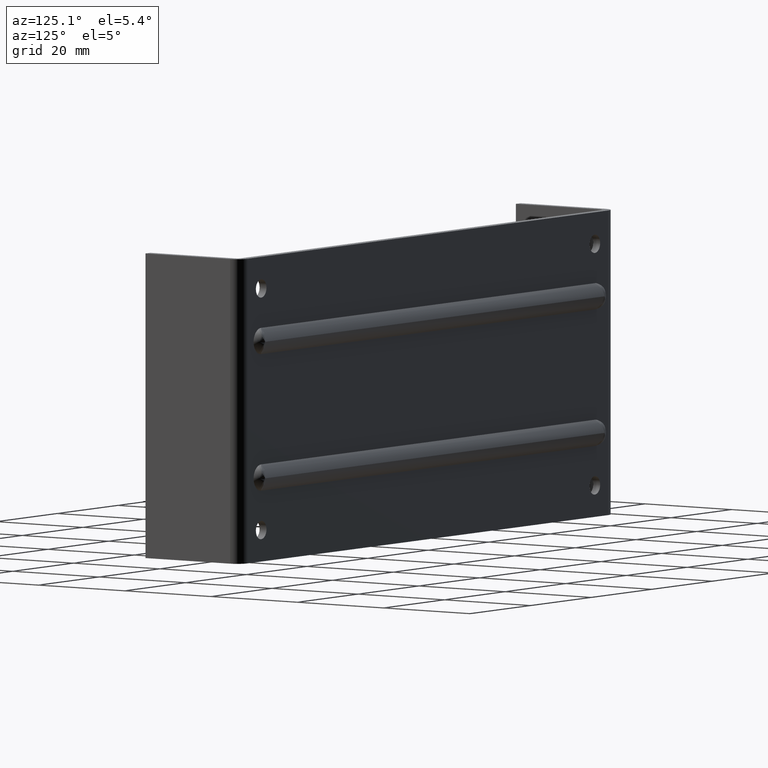
[diagram: clean part render]
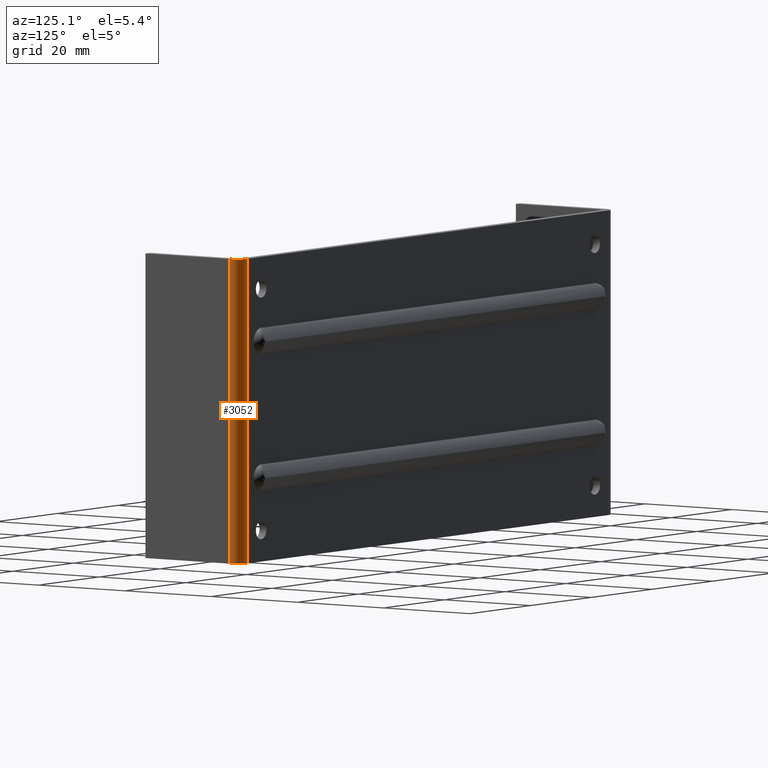
[diagram: same view with one face highlighted and labeled with its STEP entity id]
A machine part, auxiliary view. The second image highlights one B-rep face of the part: STEP entity #3052.
In plain terms, the highlighted face is a freeform B-spline surface patch.
Its self-contained STEP definition (entity closure, byte-faithful):
#2870=CARTESIAN_POINT('',(61.850000000000001,-2.400000000000000,29.0));
#2871=VERTEX_POINT('',#2870);
#2877=CARTESIAN_POINT('',(59.450000000000003,-7.105427E-015,29.0));
#2878=VERTEX_POINT('',#2877);
#2879=CARTESIAN_POINT('',(61.850000000000001,-2.400000000000000,29.0));
#2880=CARTESIAN_POINT('',(61.849999999999994,0.0,29.000000000000007));
#2881=CARTESIAN_POINT('',(59.450000000000003,0.0,29.0));
#2889=(BOUNDED_CURVE()B_SPLINE_CURVE(2,(#2879,#2880,#2881),.UNSPECIFIED.,.F.,.U.)CURVE()GEOMETRIC_REPRESENTATION_ITEM()QUASI_UNIFORM_CURVE()RATIONAL_B_SPLINE_CURVE((1.0,0.707106781186547,1.0))REPRESENTATION_ITEM(''));
#2890=EDGE_CURVE('',#2871,#2878,#2889,.T.);
#2922=CARTESIAN_POINT('',(59.450000000000003,-7.105427E-015,-29.0));
#2923=VERTEX_POINT('',#2922);
#2929=CARTESIAN_POINT('',(61.850000000000001,-2.400000000000000,-29.0));
#2930=VERTEX_POINT('',#2929);
#2931=CARTESIAN_POINT('',(61.850000000000001,-2.400000000000000,-29.0));
#2932=CARTESIAN_POINT('',(61.849999999999994,0.0,-29.000000000000007));
#2933=CARTESIAN_POINT('',(59.450000000000003,0.0,-29.0));
#2941=(BOUNDED_CURVE()B_SPLINE_CURVE(2,(#2931,#2932,#2933),.UNSPECIFIED.,.F.,.U.)CURVE()GEOMETRIC_REPRESENTATION_ITEM()QUASI_UNIFORM_CURVE()RATIONAL_B_SPLINE_CURVE((1.0,0.707106781186547,1.0))REPRESENTATION_ITEM(''));
#2942=EDGE_CURVE('',#2930,#2923,#2941,.T.);
#3024=CARTESIAN_POINT('',(59.429056314803908,-0.000091384645990,-30.450000000000010));
#3025=CARTESIAN_POINT('',(59.429056314803908,-0.000091384645990,30.486250000000009));
#3026=CARTESIAN_POINT('',(62.002643220828219,0.022367968030919,-30.449999999999999));
#3027=CARTESIAN_POINT('',(62.002643220828219,0.022367968030919,30.486250000000009));
#3028=CARTESIAN_POINT('',(61.845523516212502,-2.546516494883647,-30.450000000000010));
#3029=CARTESIAN_POINT('',(61.845523516212502,-2.546516494883647,30.486250000000009));
#3037=(BOUNDED_SURFACE()B_SPLINE_SURFACE(1,2,((#3024,#3026,#3028),(#3025,#3027,#3029)),.UNSPECIFIED.,.F.,.F.,.U.)B_SPLINE_SURFACE_WITH_KNOTS((2,2),(3,3),(0.0,60.936250000000022),(0.0,4.174198799624966),.UNSPECIFIED.)GEOMETRIC_REPRESENTATION_ITEM()RATIONAL_B_SPLINE_SURFACE(((1.0,0.681998360062499,1.0),(1.0,0.681998360062499,1.0)))REPRESENTATION_ITEM('')SURFACE());
#3038=ORIENTED_EDGE('',*,*,#2890,.F.);
#3039=CARTESIAN_POINT('',(61.850000000000001,-2.400000000000000,-29.0));
#3040=CARTESIAN_POINT('',(61.850000000000001,-2.400000000000000,29.0));
#3041=QUASI_UNIFORM_CURVE('',1,(#3039,#3040),.UNSPECIFIED.,.F.,.U.);
#3042=EDGE_CURVE('',#2930,#2871,#3041,.T.);
#3043=ORIENTED_EDGE('',*,*,#3042,.F.);
#3044=ORIENTED_EDGE('',*,*,#2942,.T.);
#3045=CARTESIAN_POINT('',(59.450000000000003,-7.105427E-015,-29.0));
#3046=CARTESIAN_POINT('',(59.450000000000003,-7.105427E-015,29.0));
#3047=QUASI_UNIFORM_CURVE('',1,(#3045,#3046),.UNSPECIFIED.,.F.,.U.);
#3048=EDGE_CURVE('',#2923,#2878,#3047,.T.);
#3049=ORIENTED_EDGE('',*,*,#3048,.T.);
#3050=EDGE_LOOP('',(#3038,#3043,#3044,#3049));
#3051=FACE_OUTER_BOUND('',#3050,.T.);
#3052=ADVANCED_FACE('',(#3051),#3037,.T.);